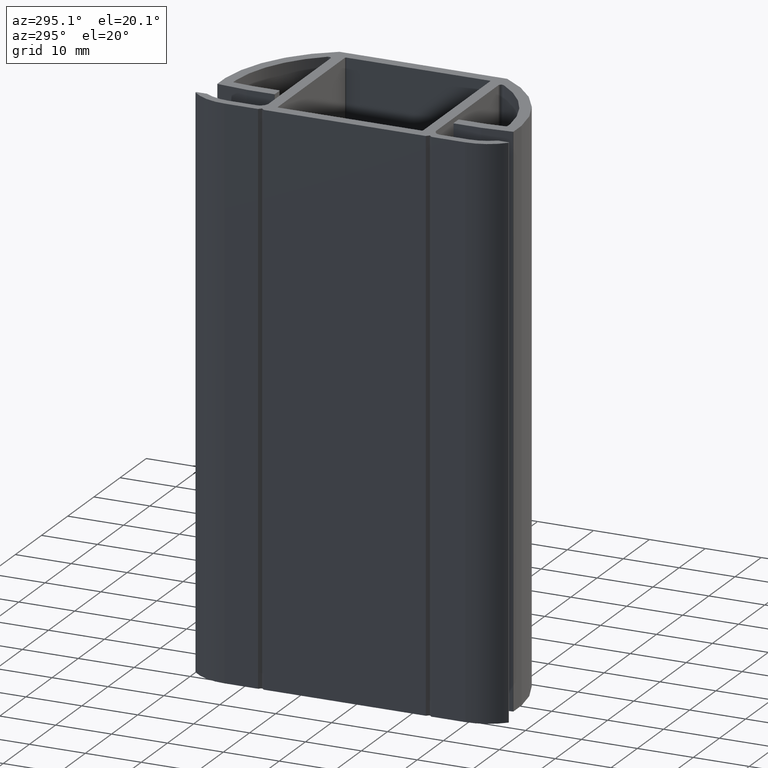
[diagram: clean part render]
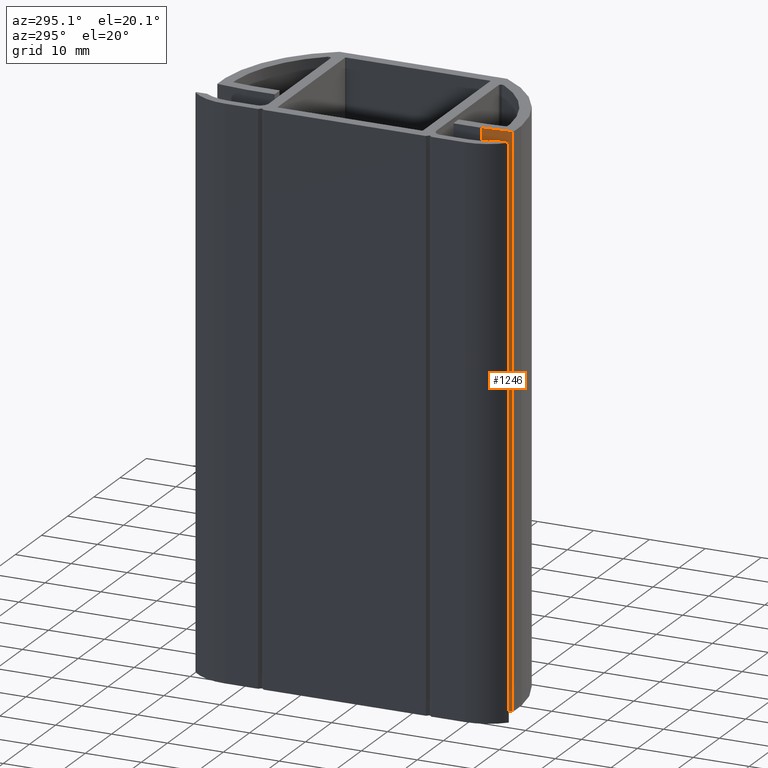
[diagram: same view with one face highlighted and labeled with its STEP entity id]
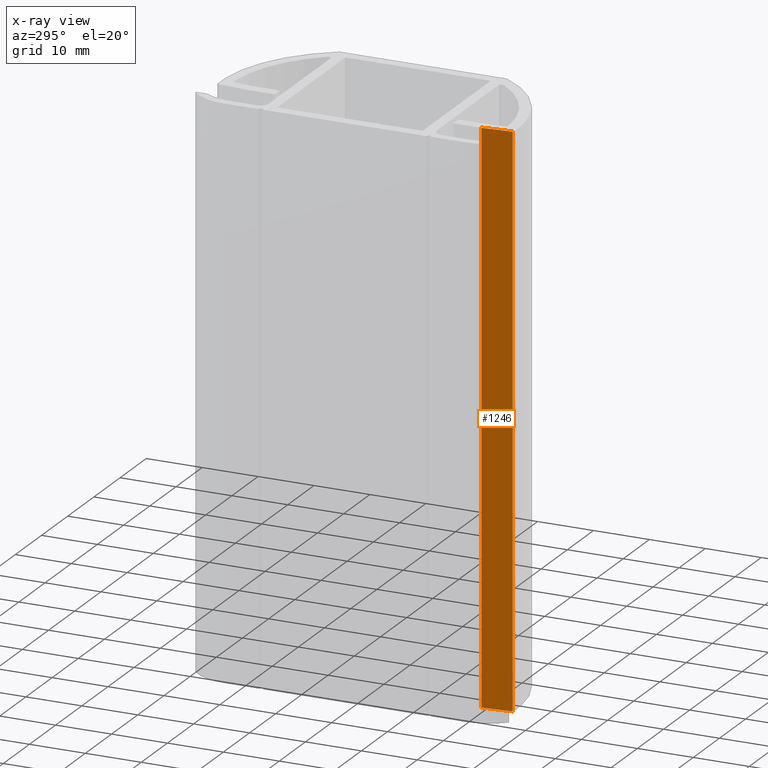
[diagram: x-ray of the same camera — body ghosted, the highlighted face saturated]
A machine part, auxiliary view. The second image highlights one B-rep face of the part: STEP entity #1246.
The next image is the same camera in x-ray: the body ghosted, the highlighted face saturated — about 0% of this face is hidden behind the body in this view.
In plain terms, the highlighted planar face has unit normal (-0.9959, -0.0905, 0).
Its self-contained STEP definition (entity closure, byte-faithful):
#38=PLANE($,#1359);
#91=FACE_OUTER_BOUND($,#155,.T.);
#155=EDGE_LOOP($,(#1021,#1022,#1023,#1024));
#270=LINE($,#1880,#400);
#329=LINE($,#2045,#459);
#330=LINE($,#2048,#460);
#331=LINE($,#2049,#461);
#400=VECTOR($,#1491,5.43135904474211);
#459=VECTOR($,#1658,100.);
#460=VECTOR($,#1661,5.43135904474211);
#461=VECTOR($,#1662,100.);
#544=VERTEX_POINT($,#1877);
#545=VERTEX_POINT($,#1879);
#597=VERTEX_POINT($,#2043);
#598=VERTEX_POINT($,#2047);
#676=EDGE_CURVE($,#544,#545,#270,.T.);
#759=EDGE_CURVE($,#544,#597,#329,.T.);
#760=EDGE_CURVE($,#598,#597,#330,.T.);
#761=EDGE_CURVE($,#545,#598,#331,.T.);
#1021=ORIENTED_EDGE($,*,*,#759,.T.);
#1022=ORIENTED_EDGE($,*,*,#760,.F.);
#1023=ORIENTED_EDGE($,*,*,#761,.F.);
#1024=ORIENTED_EDGE($,*,*,#676,.F.);
#1246=ADVANCED_FACE($,(#91),#38,.T.);
#1359=AXIS2_PLACEMENT_3D($,#2046,#1659,#1660);
#1491=DIRECTION($,(-0.0905357460423898,0.995893206467716,0.));
#1658=DIRECTION($,(0.,0.,1.));
#1659=DIRECTION('center_axis',(-0.995893206467716,-0.0905357460423898,0.));
#1660=DIRECTION('ref_axis',(0.0905357460423898,-0.995893206467716,0.));
#1661=DIRECTION($,(0.0905357460423898,-0.995893206467716,0.));
#1662=DIRECTION($,(0.,0.,1.));
#1877=CARTESIAN_POINT('',(-7.20826782229394,-26.409053574605,-50.));
#1879=CARTESIAN_POINT('',(-7.69999996543375,-21.0000000000593,-50.));
#1880=CARTESIAN_POINT($,(-7.69999996543375,-21.0000000000593,-50.));
#2043=CARTESIAN_POINT('',(-7.20826782229394,-26.409053574605,50.));
#2045=CARTESIAN_POINT($,(-7.20826782229394,-26.409053574605,0.));
#2046=CARTESIAN_POINT('Origin',(-7.69999996543375,-21.0000000000593,0.));
#2047=CARTESIAN_POINT('',(-7.69999996543375,-21.0000000000593,50.));
#2048=CARTESIAN_POINT($,(-7.69999996543375,-21.0000000000593,50.));
#2049=CARTESIAN_POINT($,(-7.69999996543375,-21.0000000000593,0.));